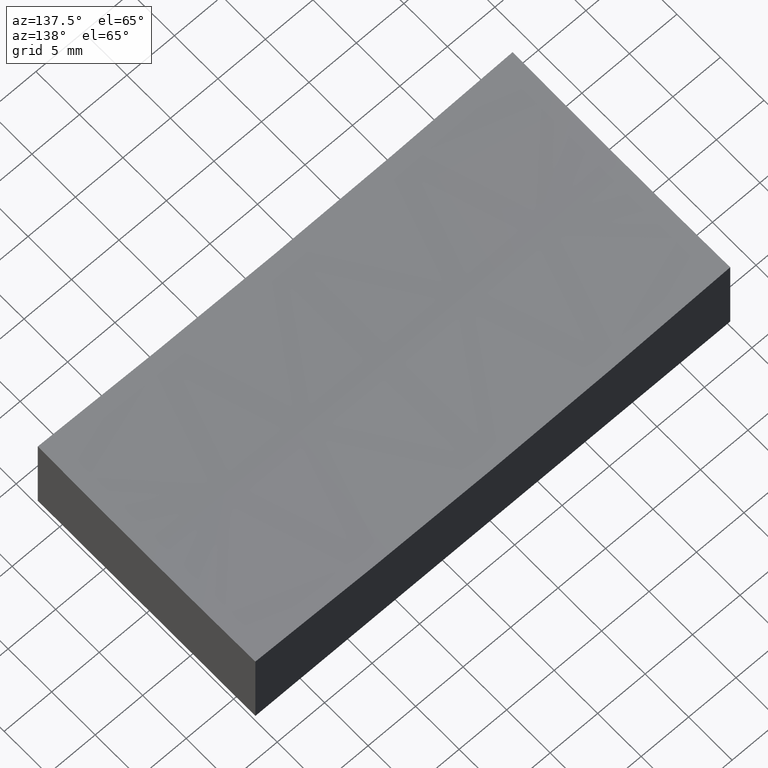
[diagram: clean part render]
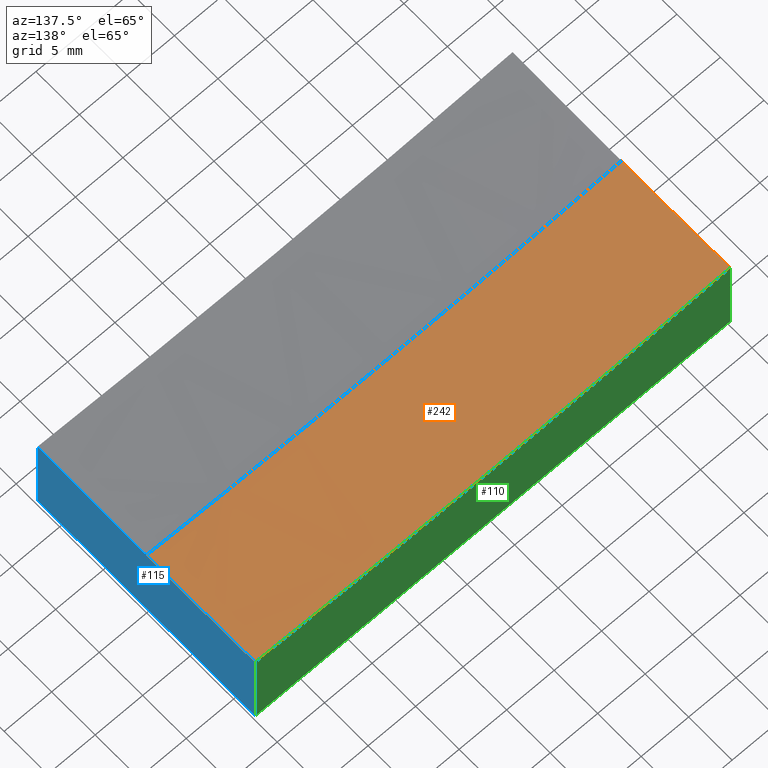
[diagram: same view with three faces highlighted in distinct colors, each labeled with its STEP entity id]
A machine part, auxiliary view with three faces highlighted in distinct colors.
Their STEP definitions:

[orange] entity #242 — the highlighted spherical surface has radius 400 mm.
#5 = ORIENTED_EDGE ( 'NONE', *, *, #248, .T. ) ;
#9 = CARTESIAN_POINT ( 'NONE',  ( -25.00000000000000000, -3.469446951953614189E-15, 409.0000000000000568 ) ) ;
#12 = DIRECTION ( 'NONE',  ( -1.390497253084598109E-16, 1.000000000000000000, 0.000000000000000000 ) ) ;
#14 = DIRECTION ( 'NONE',  ( 0.000000000000000000, 0.000000000000000000, -1.000000000000000000 ) ) ;
#15 = FACE_OUTER_BOUND ( 'NONE', #79, .T. ) ;
#16 = DIRECTION ( 'NONE',  ( -0.000000000000000000, 1.000000000000000000, -0.000000000000000000 ) ) ;
#19 = CIRCLE ( 'NONE', #45, 399.2179855667828292 ) ;
#22 = AXIS2_PLACEMENT_3D ( 'NONE', #9, #103, #12 ) ;
#24 = ORIENTED_EDGE ( 'NONE', *, *, #220, .F. ) ;
#38 = VERTEX_POINT ( 'NONE', #117 ) ;
#45 = AXIS2_PLACEMENT_3D ( 'NONE', #62, #125, #144 ) ;
#50 = ORIENTED_EDGE ( 'NONE', *, *, #208, .T. ) ;
#56 = ORIENTED_EDGE ( 'NONE', *, *, #174, .T. ) ;
#59 = VERTEX_POINT ( 'NONE', #198 ) ;
#62 = CARTESIAN_POINT ( 'NONE',  ( 25.00000000000000000, -6.938893903907228378E-15, 409.0000000000000568 ) ) ;
#65 = AXIS2_PLACEMENT_3D ( 'NONE', #67, #213, #158 ) ;
#67 = CARTESIAN_POINT ( 'NONE',  ( 0.000000000000000000, 0.000000000000000000, 409.0000000000000568 ) ) ;
#69 = CARTESIAN_POINT ( 'NONE',  ( 0.000000000000000000, 0.000000000000000000, 409.0000000000000568 ) ) ;
#71 = DIRECTION ( 'NONE',  ( 1.224646799147353207E-16, -1.000000000000000000, -1.194747633266363858E-35 ) ) ;
#79 = EDGE_LOOP ( 'NONE', ( #240, #5, #24, #56, #50 ) ) ;
#92 = DIRECTION ( 'NONE',  ( 0.000000000000000000, -1.000000000000000000, -0.000000000000000000 ) ) ;
#102 = CARTESIAN_POINT ( 'NONE',  ( 25.00000000000000355, 12.50000000000000000, 9.977757512190821743 ) ) ;
#103 = DIRECTION ( 'NONE',  ( -1.000000000000000000, -1.387778780781445676E-16, 0.000000000000000000 ) ) ;
#106 = DIRECTION ( 'NONE',  ( 1.000000000000000000, 1.224646799147353207E-16, 0.000000000000000000 ) ) ;
#117 = CARTESIAN_POINT ( 'NONE',  ( -25.00000000000000000, 12.50000000000000000, 9.977757512190821743 ) ) ;
#118 = VERTEX_POINT ( 'NONE', #184 ) ;
#123 = AXIS2_PLACEMENT_3D ( 'NONE', #133, #16, #14 ) ;
#125 = DIRECTION ( 'NONE',  ( 1.000000000000000000, -2.775557561562891351E-16, -0.000000000000000000 ) ) ;
#129 = CIRCLE ( 'NONE', #233, 400.0000000000000000 ) ;
#133 = CARTESIAN_POINT ( 'NONE',  ( 0.000000000000000000, 12.50000000000000000, 409.0000000000000568 ) ) ;
#139 = EDGE_CURVE ( 'NONE', #38, #59, #212, .T. ) ;
#144 = DIRECTION ( 'NONE',  ( -2.780994506169196219E-16, -1.000000000000000000, 0.000000000000000000 ) ) ;
#158 = DIRECTION ( 'NONE',  ( 0.000000000000000000, 0.000000000000000000, 1.000000000000000000 ) ) ;
#159 = VERTEX_POINT ( 'NONE', #102 ) ;
#160 = CIRCLE ( 'NONE', #65, 400.0000000000000000 ) ;
#171 = CIRCLE ( 'NONE', #123, 399.8046397929869045 ) ;
#174 = EDGE_CURVE ( 'NONE', #118, #159, #19, .T. ) ;
#176 = CARTESIAN_POINT ( 'NONE',  ( 0.000000000000000000, 0.000000000000000000, 409.0000000000000568 ) ) ;
#184 = CARTESIAN_POINT ( 'NONE',  ( 25.00000000000000000, 0.000000000000000000, 9.782014433217216975 ) ) ;
#189 = CARTESIAN_POINT ( 'NONE',  ( 2.445391256381599328E-14, 0.000000000000000000, 9.000000000000007105 ) ) ;
#192 = AXIS2_PLACEMENT_3D ( 'NONE', #176, #92, #250 ) ;
#198 = CARTESIAN_POINT ( 'NONE',  ( -25.00000000000000000, -3.061616997868383043E-15, 9.782014433217216975 ) ) ;
#208 = EDGE_CURVE ( 'NONE', #159, #38, #171, .T. ) ;
#212 = CIRCLE ( 'NONE', #22, 399.2179855667828292 ) ;
#213 = DIRECTION ( 'NONE',  ( 0.000000000000000000, 1.000000000000000000, -0.000000000000000000 ) ) ;
#220 = EDGE_CURVE ( 'NONE', #118, #221, #160, .T. ) ;
#221 = VERTEX_POINT ( 'NONE', #189 ) ;
#233 = AXIS2_PLACEMENT_3D ( 'NONE', #69, #71, #106 ) ;
#234 = SPHERICAL_SURFACE ( 'NONE', #192, 400.0000000000000000 ) ;
#240 = ORIENTED_EDGE ( 'NONE', *, *, #139, .T. ) ;
#242 = ADVANCED_FACE ( 'NONE', ( #15 ), #234, .F. ) ;
#248 = EDGE_CURVE ( 'NONE', #59, #221, #129, .T. ) ;
#250 = DIRECTION ( 'NONE',  ( 1.000000000000000000, 0.000000000000000000, 0.000000000000000000 ) ) ;

[blue] entity #115 — the highlighted planar face has unit normal (-1, 0, 0).
#11 = DIRECTION ( 'NONE',  ( 1.000000000000000000, -2.775557561562891351E-16, -0.000000000000000000 ) ) ;
#18 = EDGE_LOOP ( 'NONE', ( #182, #52, #95, #116, #100 ) ) ;
#19 = CIRCLE ( 'NONE', #45, 399.2179855667828292 ) ;
#25 = FACE_OUTER_BOUND ( 'NONE', #18, .T. ) ;
#26 = EDGE_CURVE ( 'NONE', #215, #217, #197, .T. ) ;
#35 = DIRECTION ( 'NONE',  ( -0.000000000000000000, -0.000000000000000000, -1.000000000000000000 ) ) ;
#41 = CARTESIAN_POINT ( 'NONE',  ( 25.00000000000000355, 12.50000000000000000, 15.00000000000000000 ) ) ;
#42 = DIRECTION ( 'NONE',  ( 2.775557561562891351E-16, 1.000000000000000000, -0.000000000000000000 ) ) ;
#45 = AXIS2_PLACEMENT_3D ( 'NONE', #62, #125, #144 ) ;
#52 = ORIENTED_EDGE ( 'NONE', *, *, #26, .T. ) ;
#54 = CARTESIAN_POINT ( 'NONE',  ( 24.99999999999999645, -12.50000000000000000, 15.00000000000000000 ) ) ;
#62 = CARTESIAN_POINT ( 'NONE',  ( 25.00000000000000000, -6.938893903907228378E-15, 409.0000000000000568 ) ) ;
#64 = LINE ( 'NONE', #224, #153 ) ;
#66 = CIRCLE ( 'NONE', #218, 399.2179855667828292 ) ;
#68 = EDGE_CURVE ( 'NONE', #159, #93, #141, .T. ) ;
#83 = PLANE ( 'NONE',  #162 ) ;
#87 = DIRECTION ( 'NONE',  ( -2.780994506169196219E-16, -1.000000000000000000, 0.000000000000000000 ) ) ;
#93 = VERTEX_POINT ( 'NONE', #149 ) ;
#95 = ORIENTED_EDGE ( 'NONE', *, *, #157, .T. ) ;
#97 = VECTOR ( 'NONE', #35, 1000.000000000000000 ) ;
#100 = ORIENTED_EDGE ( 'NONE', *, *, #174, .F. ) ;
#101 = CARTESIAN_POINT ( 'NONE',  ( 25.00000000000000355, 12.50000000000000000, 15.00000000000000000 ) ) ;
#102 = CARTESIAN_POINT ( 'NONE',  ( 25.00000000000000355, 12.50000000000000000, 9.977757512190821743 ) ) ;
#115 = ADVANCED_FACE ( 'NONE', ( #25 ), #83, .F. ) ;
#116 = ORIENTED_EDGE ( 'NONE', *, *, #68, .F. ) ;
#118 = VERTEX_POINT ( 'NONE', #184 ) ;
#120 = DIRECTION ( 'NONE',  ( -2.775557561562891351E-16, -1.000000000000000000, 0.000000000000000000 ) ) ;
#125 = DIRECTION ( 'NONE',  ( 1.000000000000000000, -2.775557561562891351E-16, -0.000000000000000000 ) ) ;
#141 = LINE ( 'NONE', #41, #249 ) ;
#143 = DIRECTION ( 'NONE',  ( -0.000000000000000000, -0.000000000000000000, -1.000000000000000000 ) ) ;
#144 = DIRECTION ( 'NONE',  ( -2.780994506169196219E-16, -1.000000000000000000, 0.000000000000000000 ) ) ;
#147 = CARTESIAN_POINT ( 'NONE',  ( 25.00000000000000000, -6.938893903907228378E-15, 409.0000000000000568 ) ) ;
#149 = CARTESIAN_POINT ( 'NONE',  ( 25.00000000000000355, 12.50000000000000000, 0.000000000000000000 ) ) ;
#153 = VECTOR ( 'NONE', #42, 1000.000000000000000 ) ;
#157 = EDGE_CURVE ( 'NONE', #217, #93, #64, .T. ) ;
#159 = VERTEX_POINT ( 'NONE', #102 ) ;
#162 = AXIS2_PLACEMENT_3D ( 'NONE', #101, #169, #120 ) ;
#169 = DIRECTION ( 'NONE',  ( -1.000000000000000000, 2.775557561562891351E-16, 0.000000000000000000 ) ) ;
#174 = EDGE_CURVE ( 'NONE', #118, #159, #19, .T. ) ;
#182 = ORIENTED_EDGE ( 'NONE', *, *, #199, .F. ) ;
#184 = CARTESIAN_POINT ( 'NONE',  ( 25.00000000000000000, 0.000000000000000000, 9.782014433217216975 ) ) ;
#197 = LINE ( 'NONE', #54, #97 ) ;
#199 = EDGE_CURVE ( 'NONE', #215, #118, #66, .T. ) ;
#209 = CARTESIAN_POINT ( 'NONE',  ( 24.99999999999999645, -12.50000000000000000, 0.000000000000000000 ) ) ;
#211 = CARTESIAN_POINT ( 'NONE',  ( 24.99999999999999645, -12.50000000000000000, 9.977757512190766676 ) ) ;
#215 = VERTEX_POINT ( 'NONE', #211 ) ;
#217 = VERTEX_POINT ( 'NONE', #209 ) ;
#218 = AXIS2_PLACEMENT_3D ( 'NONE', #147, #11, #87 ) ;
#224 = CARTESIAN_POINT ( 'NONE',  ( 25.00000000000000355, 12.50000000000000000, 0.000000000000000000 ) ) ;
#249 = VECTOR ( 'NONE', #143, 1000.000000000000000 ) ;

[green] entity #110 — the highlighted planar face has unit normal (0, -1, 0).
#14 = DIRECTION ( 'NONE',  ( 0.000000000000000000, 0.000000000000000000, -1.000000000000000000 ) ) ;
#16 = DIRECTION ( 'NONE',  ( -0.000000000000000000, 1.000000000000000000, -0.000000000000000000 ) ) ;
#27 = DIRECTION ( 'NONE',  ( 0.000000000000000000, -1.000000000000000000, 0.000000000000000000 ) ) ;
#36 = VERTEX_POINT ( 'NONE', #163 ) ;
#38 = VERTEX_POINT ( 'NONE', #117 ) ;
#39 = FACE_OUTER_BOUND ( 'NONE', #194, .T. ) ;
#41 = CARTESIAN_POINT ( 'NONE',  ( 25.00000000000000355, 12.50000000000000000, 15.00000000000000000 ) ) ;
#43 = PLANE ( 'NONE',  #122 ) ;
#68 = EDGE_CURVE ( 'NONE', #159, #93, #141, .T. ) ;
#82 = LINE ( 'NONE', #188, #148 ) ;
#89 = VECTOR ( 'NONE', #225, 1000.000000000000000 ) ;
#93 = VERTEX_POINT ( 'NONE', #149 ) ;
#102 = CARTESIAN_POINT ( 'NONE',  ( 25.00000000000000355, 12.50000000000000000, 9.977757512190821743 ) ) ;
#110 = ADVANCED_FACE ( 'NONE', ( #39 ), #43, .F. ) ;
#117 = CARTESIAN_POINT ( 'NONE',  ( -25.00000000000000000, 12.50000000000000000, 9.977757512190821743 ) ) ;
#122 = AXIS2_PLACEMENT_3D ( 'NONE', #186, #27, #126 ) ;
#123 = AXIS2_PLACEMENT_3D ( 'NONE', #133, #16, #14 ) ;
#126 = DIRECTION ( 'NONE',  ( 0.000000000000000000, -0.000000000000000000, -1.000000000000000000 ) ) ;
#133 = CARTESIAN_POINT ( 'NONE',  ( 0.000000000000000000, 12.50000000000000000, 409.0000000000000568 ) ) ;
#137 = EDGE_CURVE ( 'NONE', #93, #36, #82, .T. ) ;
#141 = LINE ( 'NONE', #41, #249 ) ;
#143 = DIRECTION ( 'NONE',  ( -0.000000000000000000, -0.000000000000000000, -1.000000000000000000 ) ) ;
#148 = VECTOR ( 'NONE', #223, 1000.000000000000000 ) ;
#149 = CARTESIAN_POINT ( 'NONE',  ( 25.00000000000000355, 12.50000000000000000, 0.000000000000000000 ) ) ;
#152 = ORIENTED_EDGE ( 'NONE', *, *, #137, .T. ) ;
#159 = VERTEX_POINT ( 'NONE', #102 ) ;
#163 = CARTESIAN_POINT ( 'NONE',  ( -25.00000000000000000, 12.50000000000000000, 0.000000000000000000 ) ) ;
#171 = CIRCLE ( 'NONE', #123, 399.8046397929869045 ) ;
#178 = ORIENTED_EDGE ( 'NONE', *, *, #208, .F. ) ;
#179 = ORIENTED_EDGE ( 'NONE', *, *, #195, .F. ) ;
#186 = CARTESIAN_POINT ( 'NONE',  ( -25.00000000000000000, 12.50000000000000000, 15.00000000000000000 ) ) ;
#187 = CARTESIAN_POINT ( 'NONE',  ( -25.00000000000000000, 12.50000000000000000, 15.00000000000000000 ) ) ;
#188 = CARTESIAN_POINT ( 'NONE',  ( -25.00000000000000000, 12.50000000000000000, 0.000000000000000000 ) ) ;
#194 = EDGE_LOOP ( 'NONE', ( #178, #238, #152, #179 ) ) ;
#195 = EDGE_CURVE ( 'NONE', #38, #36, #247, .T. ) ;
#208 = EDGE_CURVE ( 'NONE', #159, #38, #171, .T. ) ;
#223 = DIRECTION ( 'NONE',  ( -1.000000000000000000, -0.000000000000000000, -0.000000000000000000 ) ) ;
#225 = DIRECTION ( 'NONE',  ( -0.000000000000000000, -0.000000000000000000, -1.000000000000000000 ) ) ;
#238 = ORIENTED_EDGE ( 'NONE', *, *, #68, .T. ) ;
#247 = LINE ( 'NONE', #187, #89 ) ;
#249 = VECTOR ( 'NONE', #143, 1000.000000000000000 ) ;